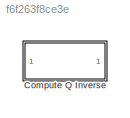
MODEL slx_f6f263f8ce3e
KIND library
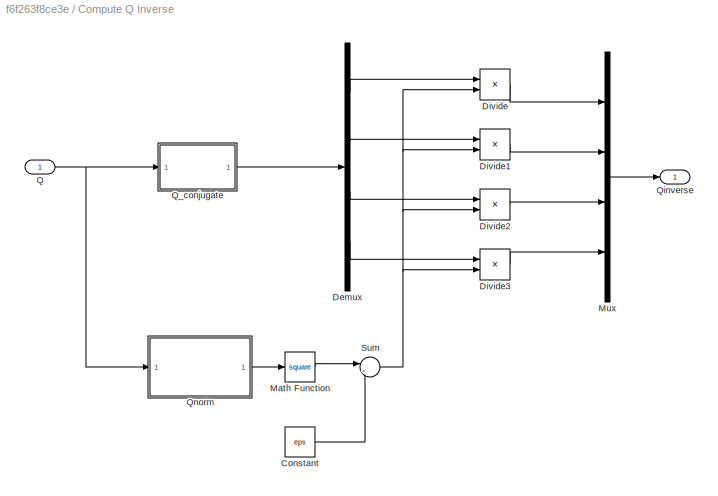
BLOCK [SubSystem] Compute Q Inverse
  Ports = [1, 1]
  RequestExecContextInheritance = off
BLOCK [Constant] Compute Q Inverse/Constant
  Value = eps
BLOCK [Demux] Compute Q Inverse/Demux
  DisplayOption = bar
  Ports = [1, 4]
BLOCK [Product] Compute Q Inverse/Divide
  InputSameDT = off
  Inputs = */
  OutDataTypeStr = Inherit: Inherit via internal rule
  Ports = [2, 1]
  RndMeth = Floor
  SaturateOnIntegerOverflow = off
BLOCK [Product] Compute Q Inverse/Divide1
  InputSameDT = off
  Inputs = */
  OutDataTypeStr = Inherit: Inherit via internal rule
  Ports = [2, 1]
  RndMeth = Floor
  SaturateOnIntegerOverflow = off
BLOCK [Product] Compute Q Inverse/Divide2
  InputSameDT = off
  Inputs = */
  OutDataTypeStr = Inherit: Inherit via internal rule
  Ports = [2, 1]
  RndMeth = Floor
  SaturateOnIntegerOverflow = off
BLOCK [Product] Compute Q Inverse/Divide3
  InputSameDT = off
  Inputs = */
  OutDataTypeStr = Inherit: Inherit via internal rule
  Ports = [2, 1]
  RndMeth = Floor
  SaturateOnIntegerOverflow = off
BLOCK [Math] Compute Q Inverse/Math Function
  Operator = square
  Ports = [1, 1]
BLOCK [Mux] Compute Q Inverse/Mux
  DisplayOption = bar
  Ports = [4, 1]
BLOCK [Inport] Compute Q Inverse/Q
  IconDisplay = Port number
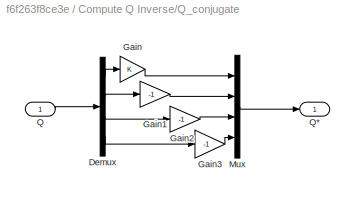
BLOCK [SubSystem] Compute Q Inverse/Q_conjugate
  Ports = [1, 1]
  RequestExecContextInheritance = off
BLOCK [Demux] Compute Q Inverse/Q_conjugate/Demux
  DisplayOption = bar
  Ports = [1, 4]
BLOCK [Gain] Compute Q Inverse/Q_conjugate/Gain
  OutDataTypeStr = Inherit: Inherit via internal rule
  ParamDataTypeStr = Inherit: Inherit via internal rule
  SaturateOnIntegerOverflow = off
BLOCK [Gain] Compute Q Inverse/Q_conjugate/Gain1
  Gain = -1
  OutDataTypeStr = Inherit: Inherit via internal rule
  ParamDataTypeStr = Inherit: Inherit via internal rule
  SaturateOnIntegerOverflow = off
BLOCK [Gain] Compute Q Inverse/Q_conjugate/Gain2
  Gain = -1
  OutDataTypeStr = Inherit: Inherit via internal rule
  ParamDataTypeStr = Inherit: Inherit via internal rule
  SaturateOnIntegerOverflow = off
BLOCK [Gain] Compute Q Inverse/Q_conjugate/Gain3
  Gain = -1
  OutDataTypeStr = Inherit: Inherit via internal rule
  ParamDataTypeStr = Inherit: Inherit via internal rule
  SaturateOnIntegerOverflow = off
BLOCK [Mux] Compute Q Inverse/Q_conjugate/Mux
  DisplayOption = bar
  Ports = [4, 1]
BLOCK [Inport] Compute Q Inverse/Q_conjugate/Q
  IconDisplay = Port number
BLOCK [Outport] Compute Q Inverse/Q_conjugate/Q*
  IconDisplay = Port number
BLOCK [Outport] Compute Q Inverse/Qinverse
  IconDisplay = Port number
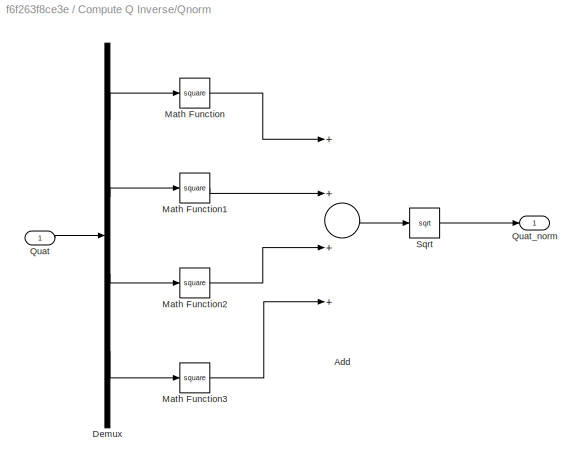
BLOCK [SubSystem] Compute Q Inverse/Qnorm
  Ports = [1, 1]
  RequestExecContextInheritance = off
BLOCK [Sum] Compute Q Inverse/Qnorm/Add
  InputSameDT = off
  Inputs = ++++
  OutDataTypeStr = Inherit: Inherit via internal rule
  Ports = [4, 1]
  SaturateOnIntegerOverflow = off
BLOCK [Demux] Compute Q Inverse/Qnorm/Demux
  DisplayOption = bar
  Ports = [1, 4]
BLOCK [Math] Compute Q Inverse/Qnorm/Math Function
  Operator = square
  Ports = [1, 1]
BLOCK [Math] Compute Q Inverse/Qnorm/Math Function1
  Operator = square
  Ports = [1, 1]
BLOCK [Math] Compute Q Inverse/Qnorm/Math Function2
  Operator = square
  Ports = [1, 1]
BLOCK [Math] Compute Q Inverse/Qnorm/Math Function3
  Operator = square
  Ports = [1, 1]
BLOCK [Inport] Compute Q Inverse/Qnorm/Quat
  IconDisplay = Port number
BLOCK [Outport] Compute Q Inverse/Qnorm/Quat_norm
  IconDisplay = Port number
BLOCK [Sqrt] Compute Q Inverse/Qnorm/Sqrt
BLOCK [Sum] Compute Q Inverse/Sum
  IconShape = round
  InputSameDT = off
  Inputs = |++
  OutDataTypeStr = Inherit: Inherit via internal rule
  Ports = [2, 1]
  SaturateOnIntegerOverflow = off
LINE Compute Q Inverse/Constant:1 -> Compute Q Inverse/Sum:2
LINE Compute Q Inverse/Demux:1 -> Compute Q Inverse/Divide:1
LINE Compute Q Inverse/Demux:2 -> Compute Q Inverse/Divide1:1
LINE Compute Q Inverse/Demux:3 -> Compute Q Inverse/Divide2:1
LINE Compute Q Inverse/Demux:4 -> Compute Q Inverse/Divide3:1
LINE Compute Q Inverse/Divide1:1 -> Compute Q Inverse/Mux:2
LINE Compute Q Inverse/Divide2:1 -> Compute Q Inverse/Mux:3
LINE Compute Q Inverse/Divide3:1 -> Compute Q Inverse/Mux:4
LINE Compute Q Inverse/Divide:1 -> Compute Q Inverse/Mux:1
LINE Compute Q Inverse/Math Function:1 -> Compute Q Inverse/Sum:1
LINE Compute Q Inverse/Mux:1 -> Compute Q Inverse/Qinverse:1
NET Compute Q Inverse/Q:1 -> Compute Q Inverse/Q_conjugate:1, Compute Q Inverse/Qnorm:1
LINE Compute Q Inverse/Q_conjugate/Demux:1 -> Compute Q Inverse/Q_conjugate/Gain:1
LINE Compute Q Inverse/Q_conjugate/Demux:2 -> Compute Q Inverse/Q_conjugate/Gain1:1
LINE Compute Q Inverse/Q_conjugate/Demux:3 -> Compute Q Inverse/Q_conjugate/Gain2:1
LINE Compute Q Inverse/Q_conjugate/Demux:4 -> Compute Q Inverse/Q_conjugate/Gain3:1
LINE Compute Q Inverse/Q_conjugate/Gain1:1 -> Compute Q Inverse/Q_conjugate/Mux:2
LINE Compute Q Inverse/Q_conjugate/Gain2:1 -> Compute Q Inverse/Q_conjugate/Mux:3
LINE Compute Q Inverse/Q_conjugate/Gain3:1 -> Compute Q Inverse/Q_conjugate/Mux:4
LINE Compute Q Inverse/Q_conjugate/Gain:1 -> Compute Q Inverse/Q_conjugate/Mux:1
LINE Compute Q Inverse/Q_conjugate/Mux:1 -> Compute Q Inverse/Q_conjugate/Q*:1
LINE Compute Q Inverse/Q_conjugate/Q:1 -> Compute Q Inverse/Q_conjugate/Demux:1
LINE Compute Q Inverse/Q_conjugate:1 -> Compute Q Inverse/Demux:1
LINE Compute Q Inverse/Qnorm/Add:1 -> Compute Q Inverse/Qnorm/Sqrt:1
LINE Compute Q Inverse/Qnorm/Demux:1 -> Compute Q Inverse/Qnorm/Math Function:1
LINE Compute Q Inverse/Qnorm/Demux:2 -> Compute Q Inverse/Qnorm/Math Function1:1
LINE Compute Q Inverse/Qnorm/Demux:3 -> Compute Q Inverse/Qnorm/Math Function2:1
LINE Compute Q Inverse/Qnorm/Demux:4 -> Compute Q Inverse/Qnorm/Math Function3:1
LINE Compute Q Inverse/Qnorm/Math Function1:1 -> Compute Q Inverse/Qnorm/Add:2
LINE Compute Q Inverse/Qnorm/Math Function2:1 -> Compute Q Inverse/Qnorm/Add:3
LINE Compute Q Inverse/Qnorm/Math Function3:1 -> Compute Q Inverse/Qnorm/Add:4
LINE Compute Q Inverse/Qnorm/Math Function:1 -> Compute Q Inverse/Qnorm/Add:1
LINE Compute Q Inverse/Qnorm/Quat:1 -> Compute Q Inverse/Qnorm/Demux:1
LINE Compute Q Inverse/Qnorm/Sqrt:1 -> Compute Q Inverse/Qnorm/Quat_norm:1
LINE Compute Q Inverse/Qnorm:1 -> Compute Q Inverse/Math Function:1
NET Compute Q Inverse/Sum:1 -> Compute Q Inverse/Divide1:2, Compute Q Inverse/Divide2:2, Compute Q Inverse/Divide3:2, Compute Q Inverse/Divide:2
note: NET lines group one-source signal fan-out (src -> all destinations, sorted); 1:1 wires keep LINE
